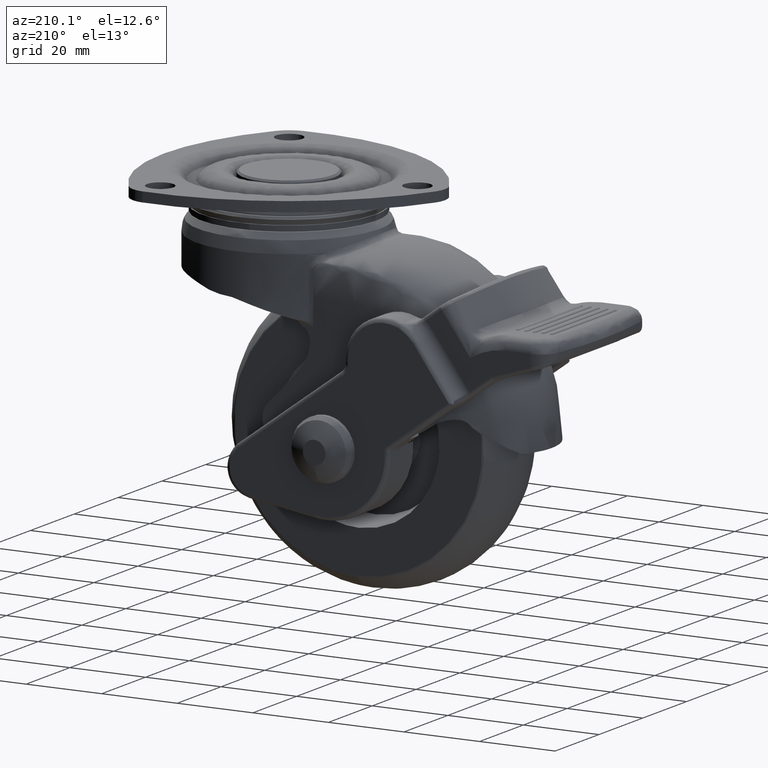
[diagram: clean part render]
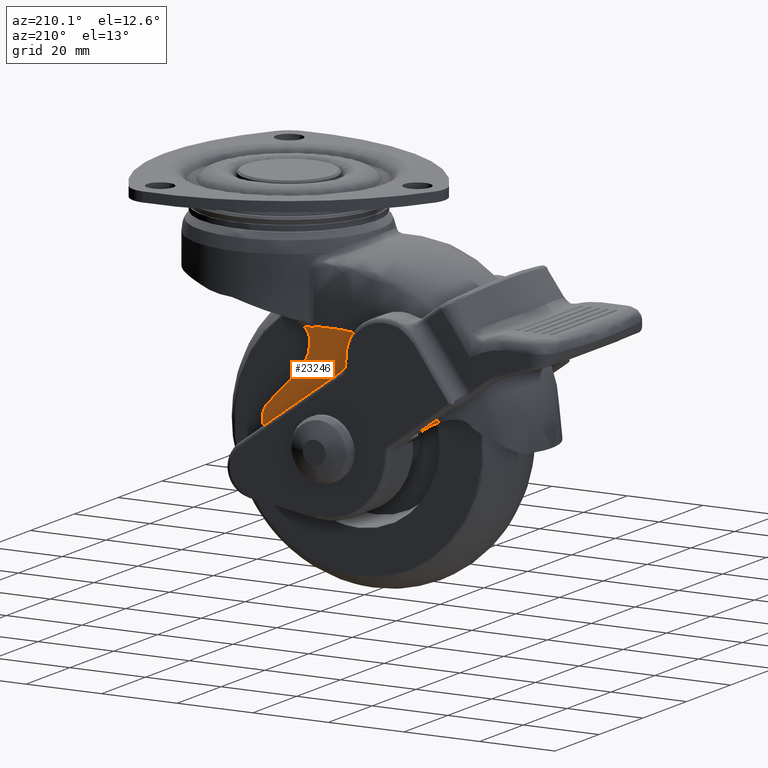
[diagram: same view with one face highlighted and labeled with its STEP entity id]
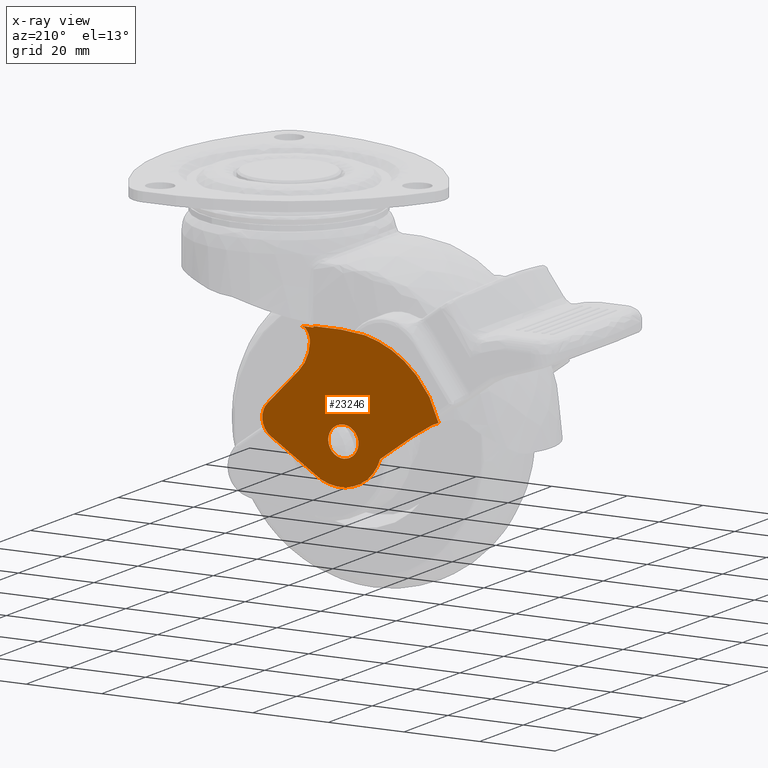
[diagram: x-ray of the same camera — body ghosted, the highlighted face saturated]
A machine part, auxiliary view. The second image highlights one B-rep face of the part: STEP entity #23246.
The next image is the same camera in x-ray: the body ghosted, the highlighted face saturated — about 0% of this face is hidden behind the body in this view.
In plain terms, the highlighted face is a freeform B-spline surface patch.
Its self-contained STEP definition (entity closure, byte-faithful):
#15888=CARTESIAN_POINT('',(-28.969064855298470,18.300000000000001,-57.003487944747931));
#15889=VERTEX_POINT('',#15888);
#15895=CARTESIAN_POINT('',(-25.0,18.300000000000001,-53.499999953096712));
#15896=VERTEX_POINT('',#15895);
#15897=CARTESIAN_POINT('',(-28.969064855298470,18.299999999999994,-57.003487944747931));
#15898=CARTESIAN_POINT('',(-28.530794400548096,18.300000000000001,-53.499999953096705));
#15899=CARTESIAN_POINT('',(-25.0,18.300000000000001,-53.499999953096712));
#15907=(BOUNDED_CURVE()B_SPLINE_CURVE(2,(#15897,#15898,#15899),.UNSPECIFIED.,.F.,.U.)B_SPLINE_CURVE_WITH_KNOTS((3,3),(0.271473928973204,0.500000000000000),.UNSPECIFIED.)CURVE()GEOMETRIC_REPRESENTATION_ITEM()RATIONAL_B_SPLINE_CURVE((0.954005430269861,0.732265053896681,1.0))REPRESENTATION_ITEM(''));
#15908=EDGE_CURVE('',#15889,#15896,#15907,.T.);
#15910=CARTESIAN_POINT('',(-21.000152307748110,18.300000000000001,-57.534906095639244));
#15911=VERTEX_POINT('',#15910);
#15912=CARTESIAN_POINT('',(-25.0,18.300000000000001,-53.499999953096712));
#15913=CARTESIAN_POINT('',(-21.000000000000004,18.300000000000001,-53.499999953096705));
#15914=CARTESIAN_POINT('',(-21.0,18.300000000000001,-57.499999953096712));
#15915=CARTESIAN_POINT('',(-21.0,18.300000000000001,-57.517453356928577));
#15916=CARTESIAN_POINT('',(-21.000152307748110,18.300000000000004,-57.534906095639251));
#15924=(BOUNDED_CURVE()B_SPLINE_CURVE(2,(#15912,#15913,#15914,#15915,#15916),.UNSPECIFIED.,.F.,.U.)B_SPLINE_CURVE_WITH_KNOTS((3,2,3),(0.500000000000000,0.750000000000000,0.751539894383344),.UNSPECIFIED.)CURVE()GEOMETRIC_REPRESENTATION_ITEM()RATIONAL_B_SPLINE_CURVE((1.0,0.707106781186548,1.0,0.998195901509719,0.996414027988495))REPRESENTATION_ITEM(''));
#15925=EDGE_CURVE('',#15896,#15911,#15924,.T.);
#16005=CARTESIAN_POINT('',(-25.0,18.300000000000001,-61.499999953096697));
#16006=VERTEX_POINT('',#16005);
#16007=CARTESIAN_POINT('',(-21.000152307748113,18.299999999999997,-57.534906095639251));
#16008=CARTESIAN_POINT('',(-21.034755158708727,18.300000000000001,-61.499999953096712));
#16009=CARTESIAN_POINT('',(-25.0,18.300000000000001,-61.499999953096697));
#16017=(BOUNDED_CURVE()B_SPLINE_CURVE(2,(#16007,#16008,#16009),.UNSPECIFIED.,.F.,.U.)B_SPLINE_CURVE_WITH_KNOTS((3,3),(0.751539894383344,1.0),.UNSPECIFIED.)CURVE()GEOMETRIC_REPRESENTATION_ITEM()RATIONAL_B_SPLINE_CURVE((0.996414027988494,0.708910879676830,1.0))REPRESENTATION_ITEM(''));
#16018=EDGE_CURVE('',#15911,#16006,#16017,.T.);
#16020=CARTESIAN_POINT('',(-25.0,18.300000000000001,-61.499999953096697));
#16021=CARTESIAN_POINT('',(-29.0,18.300000000000001,-61.499999953096712));
#16022=CARTESIAN_POINT('',(-29.0,18.300000000000001,-57.499999953096712));
#16023=CARTESIAN_POINT('',(-29.000000000000004,18.299999999999997,-57.250780242932926));
#16024=CARTESIAN_POINT('',(-28.969064855298470,18.299999999999994,-57.003487944747931));
#16032=(BOUNDED_CURVE()B_SPLINE_CURVE(2,(#16020,#16021,#16022,#16023,#16024),.UNSPECIFIED.,.F.,.U.)B_SPLINE_CURVE_WITH_KNOTS((3,2,3),(0.0,0.250000000000000,0.271473928973204),.UNSPECIFIED.)CURVE()GEOMETRIC_REPRESENTATION_ITEM()RATIONAL_B_SPLINE_CURVE((1.0,0.707106781186548,1.0,0.974841727289867,0.954005430269861))REPRESENTATION_ITEM(''));
#16033=EDGE_CURVE('',#16006,#15889,#16032,.T.);
#18720=CARTESIAN_POINT('',(-17.046099326372449,18.300000000000001,-31.610879000000050));
#18721=VERTEX_POINT('',#18720);
#18740=CARTESIAN_POINT('',(-17.046102425196000,18.300000000000001,-31.287769999999998));
#18741=VERTEX_POINT('',#18740);
#18742=CARTESIAN_POINT('',(-17.046102425196000,18.300000000000001,-31.287769999999998));
#18743=CARTESIAN_POINT('',(-17.046099326372449,18.300000000000001,-31.610879000000050));
#18744=QUASI_UNIFORM_CURVE('',1,(#18742,#18743),.UNSPECIFIED.,.F.,.U.);
#18745=EDGE_CURVE('',#18741,#18721,#18744,.T.);
#20132=CARTESIAN_POINT('',(-14.124589966944820,18.300000000000001,-31.610879000000050));
#20133=VERTEX_POINT('',#20132);
#20134=CARTESIAN_POINT('',(-14.124589966944820,18.300000000000001,-31.610879000000050));
#20135=CARTESIAN_POINT('',(-17.046099326372449,18.300000000000001,-31.610879000000050));
#20136=QUASI_UNIFORM_CURVE('',1,(#20134,#20135),.UNSPECIFIED.,.F.,.U.);
#20137=EDGE_CURVE('',#20133,#18721,#20136,.T.);
#20608=CARTESIAN_POINT('',(-4.952273197888131,18.300000000000001,-50.703396648435401));
#20609=VERTEX_POINT('',#20608);
#20617=CARTESIAN_POINT('',(-13.179507292334760,18.300000000000001,-42.207269912696887));
#20618=VERTEX_POINT('',#20617);
#20619=CARTESIAN_POINT('',(-4.952273197888131,18.300000000000001,-50.703396648435401));
#20620=CARTESIAN_POINT('',(-13.179507292334760,18.300000000000001,-42.207269912696887));
#20621=QUASI_UNIFORM_CURVE('',1,(#20619,#20620),.UNSPECIFIED.,.F.,.U.);
#20622=EDGE_CURVE('',#20609,#20618,#20621,.T.);
#20654=CARTESIAN_POINT('',(-16.154043857779751,18.300000000000001,-35.171783095885402));
#20655=VERTEX_POINT('',#20654);
#20656=CARTESIAN_POINT('',(-13.179507292334771,18.300000000000001,-42.207269912696901));
#20657=CARTESIAN_POINT('',(-16.028439881342020,18.300000000000008,-39.265225155197136));
#20658=CARTESIAN_POINT('',(-16.154043857779779,18.300000000000001,-35.171783095885402));
#20666=(BOUNDED_CURVE()B_SPLINE_CURVE(2,(#20656,#20657,#20658),.UNSPECIFIED.,.F.,.U.)CURVE()GEOMETRIC_REPRESENTATION_ITEM()QUASI_UNIFORM_CURVE()RATIONAL_B_SPLINE_CURVE((1.0,0.932571919784052,1.0))REPRESENTATION_ITEM(''));
#20667=EDGE_CURVE('',#20618,#20655,#20666,.T.);
#21152=CARTESIAN_POINT('',(-5.817731401935770,18.300000000000001,-58.402660609861996));
#21153=VERTEX_POINT('',#21152);
#21154=CARTESIAN_POINT('',(-5.817731401935753,18.300000000000001,-58.402660609862032));
#21155=CARTESIAN_POINT('',(-3.834184983865486,18.300000000000001,-57.109898097085555));
#21156=CARTESIAN_POINT('',(-3.569709818995375,18.300000000000001,-54.757081870890552));
#21157=CARTESIAN_POINT('',(-3.305234654125264,18.300000000000001,-52.404265644695549));
#21158=CARTESIAN_POINT('',(-4.952273197888137,18.300000000000001,-50.703396648435408));
#21166=(BOUNDED_CURVE()B_SPLINE_CURVE(2,(#21154,#21155,#21156,#21157,#21158),.UNSPECIFIED.,.F.,.U.)B_SPLINE_CURVE_WITH_KNOTS((3,2,3),(0.0,0.500000000000000,1.0),.UNSPECIFIED.)CURVE()GEOMETRIC_REPRESENTATION_ITEM()RATIONAL_B_SPLINE_CURVE((1.0,0.904483410382392,1.0,0.904483410382392,1.0))REPRESENTATION_ITEM(''));
#21167=EDGE_CURVE('',#21153,#20609,#21166,.T.);
#21209=CARTESIAN_POINT('',(-43.069651999999998,18.300000000000001,-54.454900953096697));
#21210=VERTEX_POINT('',#21209);
#21233=CARTESIAN_POINT('',(-48.454342386355300,18.300000000000001,-51.036551122672201));
#21234=VERTEX_POINT('',#21233);
#21240=CARTESIAN_POINT('',(-43.069651999999998,18.300000000000001,-54.454900953096697));
#21241=CARTESIAN_POINT('',(-45.655245568241014,18.300000000000001,-52.577567576334395));
#21242=CARTESIAN_POINT('',(-48.454342386355293,18.300000000000001,-51.036551122672172));
#21250=(BOUNDED_CURVE()B_SPLINE_CURVE(2,(#21240,#21241,#21242),.UNSPECIFIED.,.F.,.U.)CURVE()GEOMETRIC_REPRESENTATION_ITEM()QUASI_UNIFORM_CURVE()RATIONAL_B_SPLINE_CURVE((1.0,0.998055181997854,1.0))REPRESENTATION_ITEM(''));
#21251=EDGE_CURVE('',#21210,#21234,#21250,.T.);
#21261=CARTESIAN_POINT('',(-34.750839257760397,18.300000000000001,-60.494980210238403));
#21262=VERTEX_POINT('',#21261);
#21276=CARTESIAN_POINT('',(-34.750839257760397,18.300000000000001,-60.494980210238403));
#21277=CARTESIAN_POINT('',(-43.069651999999998,18.300000000000001,-54.454900953096697));
#21278=QUASI_UNIFORM_CURVE('',1,(#21276,#21277),.UNSPECIFIED.,.F.,.U.);
#21279=EDGE_CURVE('',#21262,#21210,#21278,.T.);
#21316=CARTESIAN_POINT('',(-18.249364755209001,18.300000000000001,-66.504889386975705));
#21317=VERTEX_POINT('',#21316);
#21318=CARTESIAN_POINT('',(-34.750839257760433,18.300000000000001,-60.494980210238417));
#21319=CARTESIAN_POINT('',(-33.157405161522092,18.299999999999997,-65.745422506871719));
#21320=CARTESIAN_POINT('',(-28.001784810856002,18.300000000000001,-67.623121984724506));
#21321=CARTESIAN_POINT('',(-22.846164460189904,18.299999999999997,-69.500821462577292));
#21322=CARTESIAN_POINT('',(-18.249364755208980,18.300000000000001,-66.504889386975748));
#21330=(BOUNDED_CURVE()B_SPLINE_CURVE(2,(#21318,#21319,#21320,#21321,#21322),.UNSPECIFIED.,.F.,.U.)B_SPLINE_CURVE_WITH_KNOTS((3,2,3),(0.0,0.500000000000000,1.0),.UNSPECIFIED.)CURVE()GEOMETRIC_REPRESENTATION_ITEM()RATIONAL_B_SPLINE_CURVE((1.0,0.894521773207874,1.0,0.894521773207874,1.0))REPRESENTATION_ITEM(''));
#21331=EDGE_CURVE('',#21262,#21317,#21330,.T.);
#21353=CARTESIAN_POINT('',(-5.817731401935770,18.300000000000001,-58.402660609861996));
#21354=CARTESIAN_POINT('',(-18.249364755209001,18.300000000000001,-66.504889386975705));
#21355=QUASI_UNIFORM_CURVE('',1,(#21353,#21354),.UNSPECIFIED.,.F.,.U.);
#21356=EDGE_CURVE('',#21153,#21317,#21355,.T.);
#21656=CARTESIAN_POINT('',(-50.207508473559407,18.300000000000001,-50.312137693318697));
#21657=VERTEX_POINT('',#21656);
#21658=CARTESIAN_POINT('',(-50.207508473559407,18.300000000000001,-50.312137693318697));
#21659=CARTESIAN_POINT('',(-48.995257664423342,18.300000000000001,-46.061299159340933));
#21660=CARTESIAN_POINT('',(-46.716146905110627,18.300000000000001,-42.146455725329972));
#21661=CARTESIAN_POINT('',(-43.534845566438662,18.300000000000001,-38.965154386658000));
#21662=CARTESIAN_POINT('',(-38.619098885583412,18.300000000000001,-34.049407705802700));
#21663=CARTESIAN_POINT('',(-31.951915619043849,18.300000000000001,-31.287769999999551));
#21664=CARTESIAN_POINT('',(-24.999999999998600,18.300000000000001,-31.287769999999998));
#21665=CARTESIAN_POINT('',(-22.348700808397730,18.300000000000001,-31.287769999999998));
#21666=CARTESIAN_POINT('',(-19.697401616796871,18.300000000000001,-31.287769999999998));
#21667=CARTESIAN_POINT('',(-17.046102425196011,18.300000000000001,-31.287769999999998));
#21668=B_SPLINE_CURVE_WITH_KNOTS('',3,(#21658,#21659,#21660,#21661,#21662,#21663,#21664,#21665,#21666,#21667),.UNSPECIFIED.,.F.,.U.,(4,3,3,4),(1.352834565080054,2.0,3.0,3.318155902992103),.UNSPECIFIED.);
#21669=EDGE_CURVE('',#21657,#18741,#21668,.T.);
#21862=CARTESIAN_POINT('',(-14.778228296881840,18.300000000000001,-31.861660974602700));
#21863=VERTEX_POINT('',#21862);
#21884=CARTESIAN_POINT('',(-16.154043857779751,18.300000000000001,-35.171783095885402));
#21885=CARTESIAN_POINT('',(-16.214371047778531,18.299999999999997,-33.205726465343098));
#21886=CARTESIAN_POINT('',(-14.778228296881849,18.300000000000001,-31.861660974602689));
#21894=(BOUNDED_CURVE()B_SPLINE_CURVE(2,(#21884,#21885,#21886),.UNSPECIFIED.,.F.,.U.)CURVE()GEOMETRIC_REPRESENTATION_ITEM()QUASI_UNIFORM_CURVE()RATIONAL_B_SPLINE_CURVE((1.0,0.911207822454144,1.0))REPRESENTATION_ITEM(''));
#21895=EDGE_CURVE('',#20655,#21863,#21894,.T.);
#22006=CARTESIAN_POINT('',(-14.208397507781580,18.300000000000001,-31.682298208941202));
#22007=VERTEX_POINT('',#22006);
#22008=CARTESIAN_POINT('',(-14.208397507781591,18.300000000000001,-31.682298208941191));
#22009=CARTESIAN_POINT('',(-14.457216315265935,18.300000000000001,-31.886657499505969));
#22010=CARTESIAN_POINT('',(-14.778228296881840,18.300000000000001,-31.861660974602700));
#22018=(BOUNDED_CURVE()B_SPLINE_CURVE(2,(#22008,#22009,#22010),.UNSPECIFIED.,.F.,.U.)CURVE()GEOMETRIC_REPRESENTATION_ITEM()QUASI_UNIFORM_CURVE()RATIONAL_B_SPLINE_CURVE((1.0,0.927675212657824,1.0))REPRESENTATION_ITEM(''));
#22019=EDGE_CURVE('',#22007,#21863,#22018,.T.);
#22084=CARTESIAN_POINT('',(-14.124589966944820,18.300000000000001,-31.610879000000050));
#22085=CARTESIAN_POINT('',(-14.165845121184431,18.300000000000004,-31.647349729210461));
#22086=CARTESIAN_POINT('',(-14.208397507781580,18.300000000000001,-31.682298208941202));
#22094=(BOUNDED_CURVE()B_SPLINE_CURVE(2,(#22084,#22085,#22086),.UNSPECIFIED.,.F.,.U.)CURVE()GEOMETRIC_REPRESENTATION_ITEM()QUASI_UNIFORM_CURVE()RATIONAL_B_SPLINE_CURVE((1.0,0.999835141074052,1.0))REPRESENTATION_ITEM(''));
#22095=EDGE_CURVE('',#20133,#22007,#22094,.T.);
#22312=CARTESIAN_POINT('',(-48.454342386355300,18.300000000000001,-51.036551122672201));
#22313=CARTESIAN_POINT('',(-50.207508473559407,18.300000000000001,-50.312137693318697));
#22314=QUASI_UNIFORM_CURVE('',1,(#22312,#22313),.UNSPECIFIED.,.F.,.U.);
#22315=EDGE_CURVE('',#21234,#21657,#22314,.T.);
#23219=CARTESIAN_POINT('',(-52.538631662102517,18.300000000000001,-70.131453375103547));
#23220=CARTESIAN_POINT('',(-1.207240130995378,18.300000000000001,-70.131453375103547));
#23221=CARTESIAN_POINT('',(-52.538631662102517,18.300000000000001,-29.439831569836318));
#23222=CARTESIAN_POINT('',(-1.207240130995378,18.300000000000001,-29.439831569836318));
#23223=B_SPLINE_SURFACE_WITH_KNOTS('',1,1,((#23219,#23221),(#23220,#23222)),.UNSPECIFIED.,.F.,.F.,.U.,(2,2),(2,2),(0.0,51.331391531107137),(0.0,40.691621805267232),.UNSPECIFIED.);
#23224=ORIENTED_EDGE('',*,*,#18745,.T.);
#23225=ORIENTED_EDGE('',*,*,#20137,.F.);
#23226=ORIENTED_EDGE('',*,*,#22095,.T.);
#23227=ORIENTED_EDGE('',*,*,#22019,.T.);
#23228=ORIENTED_EDGE('',*,*,#21895,.F.);
#23229=ORIENTED_EDGE('',*,*,#20667,.F.);
#23230=ORIENTED_EDGE('',*,*,#20622,.F.);
#23231=ORIENTED_EDGE('',*,*,#21167,.F.);
#23232=ORIENTED_EDGE('',*,*,#21356,.T.);
#23233=ORIENTED_EDGE('',*,*,#21331,.F.);
#23234=ORIENTED_EDGE('',*,*,#21279,.T.);
#23235=ORIENTED_EDGE('',*,*,#21251,.T.);
#23236=ORIENTED_EDGE('',*,*,#22315,.T.);
#23237=ORIENTED_EDGE('',*,*,#21669,.T.);
#23238=EDGE_LOOP('',(#23224,#23225,#23226,#23227,#23228,#23229,#23230,#23231,#23232,#23233,#23234,#23235,#23236,#23237));
#23239=FACE_OUTER_BOUND('',#23238,.T.);
#23240=ORIENTED_EDGE('',*,*,#15925,.F.);
#23241=ORIENTED_EDGE('',*,*,#15908,.F.);
#23242=ORIENTED_EDGE('',*,*,#16033,.F.);
#23243=ORIENTED_EDGE('',*,*,#16018,.F.);
#23244=EDGE_LOOP('',(#23240,#23241,#23242,#23243));
#23245=FACE_BOUND('',#23244,.T.);
#23246=ADVANCED_FACE('',(#23239,#23245),#23223,.F.);